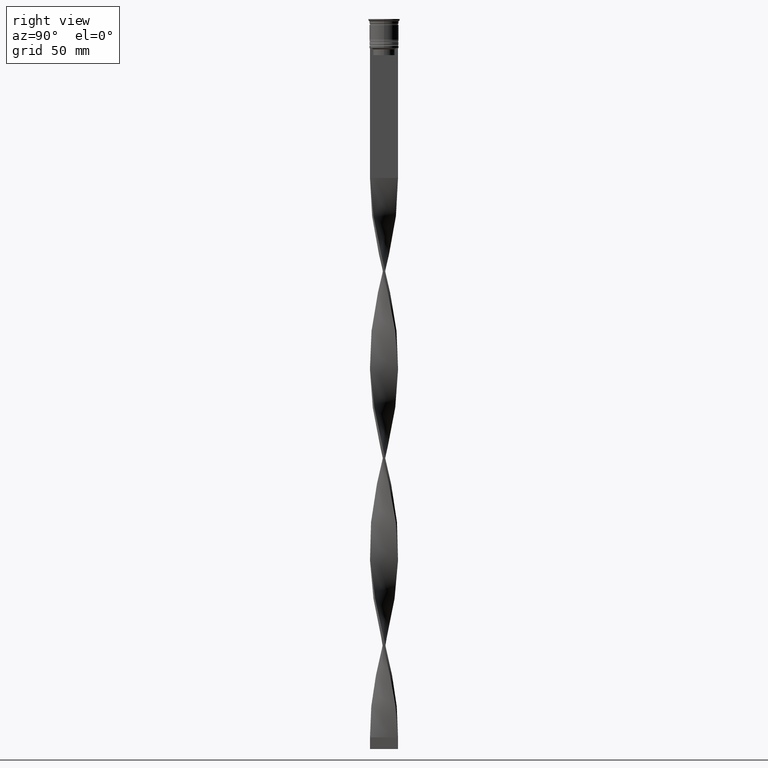
[diagram: clean part render]
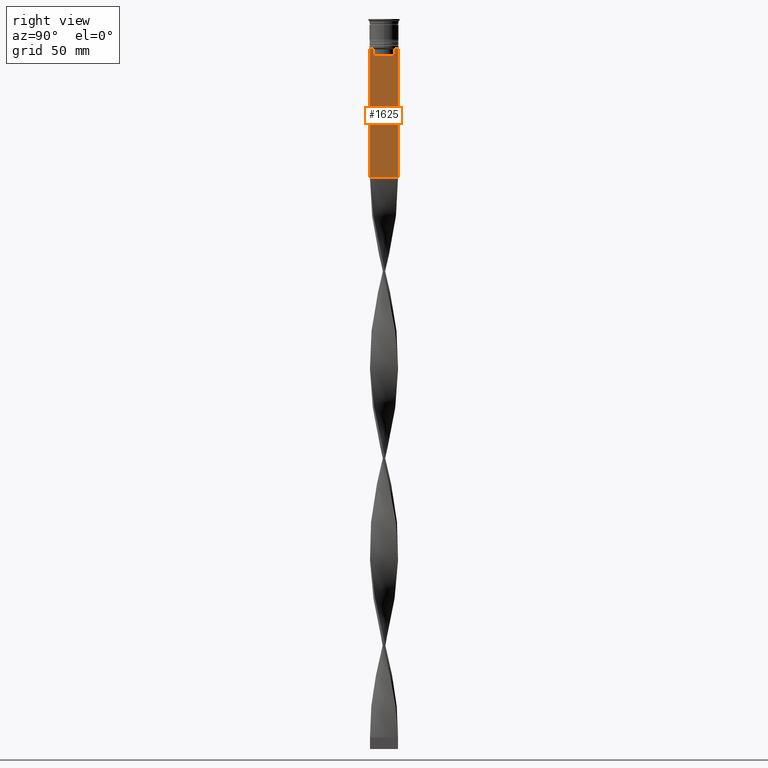
[diagram: same view with one face highlighted and labeled with its STEP entity id]
A machine part, right view. The second image highlights one B-rep face of the part: STEP entity #1625.
In plain terms, the highlighted planar face has unit normal (-1, 0, 0).
Its self-contained STEP definition (entity closure, byte-faithful):
#57 = DIRECTION ( 'NONE',  ( 0.000000000000000000, 0.000000000000000000, -1.000000000000000000 ) ) ;
#58 = EDGE_CURVE ( 'NONE', #2495, #121, #2453, .T. ) ;
#82 = CARTESIAN_POINT ( 'NONE',  ( 0.5000000000000002220, -4.623040125285526436, 0.000000000000000000 ) ) ;
#83 = ORIENTED_EDGE ( 'NONE', *, *, #3670, .T. ) ;
#115 = VERTEX_POINT ( 'NONE', #3532 ) ;
#118 = CARTESIAN_POINT ( 'NONE',  ( 0.5000000000000002220, -6.000000000000000000, -12.50000000000000000 ) ) ;
#121 = VERTEX_POINT ( 'NONE', #3031 ) ;
#132 = DIRECTION ( 'NONE',  ( 0.000000000000000000, 0.000000000000000000, -1.000000000000000000 ) ) ;
#155 = DIRECTION ( 'NONE',  ( 0.000000000000000000, -1.000000000000000000, 0.000000000000000000 ) ) ;
#182 = ORIENTED_EDGE ( 'NONE', *, *, #2239, .T. ) ;
#196 = CARTESIAN_POINT ( 'NONE',  ( 0.5000000000000002220, -4.623040125285526436, -13.00000000000000178 ) ) ;
#215 = EDGE_CURVE ( 'NONE', #1068, #115, #2841, .T. ) ;
#304 = EDGE_CURVE ( 'NONE', #2186, #3630, #618, .T. ) ;
#309 = CARTESIAN_POINT ( 'NONE',  ( 0.5000000000000002220, -6.000000000000000000, -12.50000000000000000 ) ) ;
#385 = LINE ( 'NONE', #82, #3122 ) ;
#412 = CARTESIAN_POINT ( 'NONE',  ( 0.5000000000000002220, 4.623040125285526436, -15.50000000000000000 ) ) ;
#460 = ORIENTED_EDGE ( 'NONE', *, *, #1325, .T. ) ;
#526 = CARTESIAN_POINT ( 'NONE',  ( 0.5000000000000002220, -4.958169719475986170, -12.66670967060858111 ) ) ;
#545 = CARTESIAN_POINT ( 'NONE',  ( 0.5000000000000002220, 5.125670687822231564, -12.50000000000000000 ) ) ;
#551 = DIRECTION ( 'NONE',  ( 0.000000000000000000, 0.000000000000000000, 1.000000000000000000 ) ) ;
#609 = CARTESIAN_POINT ( 'NONE',  ( 0.5000000000000002220, 4.790630915080664742, -12.83338087185995491 ) ) ;
#618 = LINE ( 'NONE', #1217, #1481 ) ;
#661 = LINE ( 'NONE', #1909, #3243 ) ;
#675 = CARTESIAN_POINT ( 'NONE',  ( 0.5000000000000002220, -4.623040125285526436, -15.50000000000000000 ) ) ;
#858 = PLANE ( 'NONE',  #1423 ) ;
#918 = CARTESIAN_POINT ( 'NONE',  ( 0.5000000000000002220, 4.958169823806760412, -12.66670956677067927 ) ) ;
#1068 = VERTEX_POINT ( 'NONE', #2227 ) ;
#1086 = ORIENTED_EDGE ( 'NONE', *, *, #3788, .F. ) ;
#1217 = CARTESIAN_POINT ( 'NONE',  ( 0.5000000000000002220, -6.000000000000000000, -68.00000000000000000 ) ) ;
#1234 = ORIENTED_EDGE ( 'NONE', *, *, #58, .T. ) ;
#1302 = CARTESIAN_POINT ( 'NONE',  ( 0.5000000000000002220, 4.623040125285526436, 0.000000000000000000 ) ) ;
#1324 = DIRECTION ( 'NONE',  ( -0.000000000000000000, -0.000000000000000000, 1.000000000000000000 ) ) ;
#1325 = EDGE_CURVE ( 'NONE', #3948, #2765, #385, .T. ) ;
#1423 = AXIS2_PLACEMENT_3D ( 'NONE', #2111, #3352, #551 ) ;
#1428 = VECTOR ( 'NONE', #2366, 1000.000000000000000 ) ;
#1481 = VECTOR ( 'NONE', #2422, 1000.000000000000000 ) ;
#1545 = CARTESIAN_POINT ( 'NONE',  ( 0.5000000000000002220, 6.000000000000000888, -12.50000000000000000 ) ) ;
#1554 = VECTOR ( 'NONE', #132, 1000.000000000000000 ) ;
#1625 = ADVANCED_FACE ( 'NONE', ( #3952 ), #858, .F. ) ;
#1682 = VECTOR ( 'NONE', #57, 1000.000000000000000 ) ;
#1725 = LINE ( 'NONE', #2972, #1428 ) ;
#1771 = CARTESIAN_POINT ( 'NONE',  ( 0.5000000000000002220, -4.790630799407577634, -12.83338098686238915 ) ) ;
#1909 = CARTESIAN_POINT ( 'NONE',  ( 0.5000000000000002220, -6.000000000000000000, -0.4584054212077061097 ) ) ;
#2053 = B_SPLINE_CURVE_WITH_KNOTS ( 'NONE', 3,
 ( #2413, #1771, #526, #3645 ),
 .UNSPECIFIED., .F., .F.,
 ( 4, 4 ),
 ( 0.02203698174624554168, 0.02275222543365897770 ),
 .UNSPECIFIED. ) ;
#2111 = CARTESIAN_POINT ( 'NONE',  ( 0.5000000000000002220, -6.000000000000000000, -0.4584054212077061097 ) ) ;
#2114 = EDGE_LOOP ( 'NONE', ( #83, #1234, #3499, #3030, #460, #182, #2938, #3442, #3587, #1086 ) ) ;
#2186 = VERTEX_POINT ( 'NONE', #3898 ) ;
#2227 = CARTESIAN_POINT ( 'NONE',  ( 0.5000000000000002220, -5.125670687822231564, -12.50000000000000000 ) ) ;
#2228 = CARTESIAN_POINT ( 'NONE',  ( 0.5000000000000002220, 5.125670687822231564, -12.50000000000000000 ) ) ;
#2235 = EDGE_CURVE ( 'NONE', #2703, #3948, #1725, .T. ) ;
#2239 = EDGE_CURVE ( 'NONE', #2765, #1068, #2053, .T. ) ;
#2261 = VECTOR ( 'NONE', #3435, 1000.000000000000000 ) ;
#2366 = DIRECTION ( 'NONE',  ( 0.000000000000000000, -1.000000000000000000, 0.000000000000000000 ) ) ;
#2413 = CARTESIAN_POINT ( 'NONE',  ( 0.5000000000000002220, -4.623040125285526436, -13.00000000000000178 ) ) ;
#2422 = DIRECTION ( 'NONE',  ( 0.000000000000000000, 1.000000000000000000, 0.000000000000000000 ) ) ;
#2453 = B_SPLINE_CURVE_WITH_KNOTS ( 'NONE', 3,
 ( #545, #918, #609, #2870 ),
 .UNSPECIFIED., .F., .F.,
 ( 4, 4 ),
 ( 0.008759809102772709091, 0.009468778395565353653 ),
 .UNSPECIFIED. ) ;
#2495 = VERTEX_POINT ( 'NONE', #2228 ) ;
#2571 = DIRECTION ( 'NONE',  ( 0.000000000000000000, 0.000000000000000000, -1.000000000000000000 ) ) ;
#2604 = EDGE_CURVE ( 'NONE', #121, #2703, #2928, .T. ) ;
#2703 = VERTEX_POINT ( 'NONE', #412 ) ;
#2765 = VERTEX_POINT ( 'NONE', #196 ) ;
#2820 = LINE ( 'NONE', #2835, #1682 ) ;
#2835 = CARTESIAN_POINT ( 'NONE',  ( 0.5000000000000002220, 6.000000000000000888, -0.4584054212077061097 ) ) ;
#2841 = LINE ( 'NONE', #309, #2261 ) ;
#2870 = CARTESIAN_POINT ( 'NONE',  ( 0.5000000000000002220, 4.623040125285526436, -13.00000000000000178 ) ) ;
#2928 = LINE ( 'NONE', #1302, #1554 ) ;
#2938 = ORIENTED_EDGE ( 'NONE', *, *, #215, .T. ) ;
#2972 = CARTESIAN_POINT ( 'NONE',  ( 0.5000000000000002220, 4.650000000000001243, -15.50000000000000000 ) ) ;
#3030 = ORIENTED_EDGE ( 'NONE', *, *, #2235, .T. ) ;
#3031 = CARTESIAN_POINT ( 'NONE',  ( 0.5000000000000002220, 4.623040125285526436, -13.00000000000000178 ) ) ;
#3046 = VERTEX_POINT ( 'NONE', #1545 ) ;
#3122 = VECTOR ( 'NONE', #1324, 1000.000000000000000 ) ;
#3179 = CARTESIAN_POINT ( 'NONE',  ( 0.5000000000000002220, 6.000000000000000888, -68.00000000000000000 ) ) ;
#3243 = VECTOR ( 'NONE', #2571, 1000.000000000000000 ) ;
#3352 = DIRECTION ( 'NONE',  ( -1.000000000000000000, 0.000000000000000000, 0.000000000000000000 ) ) ;
#3435 = DIRECTION ( 'NONE',  ( 0.000000000000000000, -1.000000000000000000, 0.000000000000000000 ) ) ;
#3442 = ORIENTED_EDGE ( 'NONE', *, *, #3974, .T. ) ;
#3499 = ORIENTED_EDGE ( 'NONE', *, *, #2604, .T. ) ;
#3504 = VECTOR ( 'NONE', #155, 1000.000000000000000 ) ;
#3523 = LINE ( 'NONE', #118, #3504 ) ;
#3532 = CARTESIAN_POINT ( 'NONE',  ( 0.5000000000000002220, -6.000000000000000000, -12.50000000000000000 ) ) ;
#3587 = ORIENTED_EDGE ( 'NONE', *, *, #304, .T. ) ;
#3630 = VERTEX_POINT ( 'NONE', #3179 ) ;
#3645 = CARTESIAN_POINT ( 'NONE',  ( 0.5000000000000002220, -5.125670687822231564, -12.50000000000000000 ) ) ;
#3670 = EDGE_CURVE ( 'NONE', #3046, #2495, #3523, .T. ) ;
#3788 = EDGE_CURVE ( 'NONE', #3046, #3630, #2820, .T. ) ;
#3898 = CARTESIAN_POINT ( 'NONE',  ( 0.5000000000000002220, -5.999999999999999112, -68.00000000000000000 ) ) ;
#3948 = VERTEX_POINT ( 'NONE', #675 ) ;
#3952 = FACE_OUTER_BOUND ( 'NONE', #2114, .T. ) ;
#3974 = EDGE_CURVE ( 'NONE', #115, #2186, #661, .T. ) ;